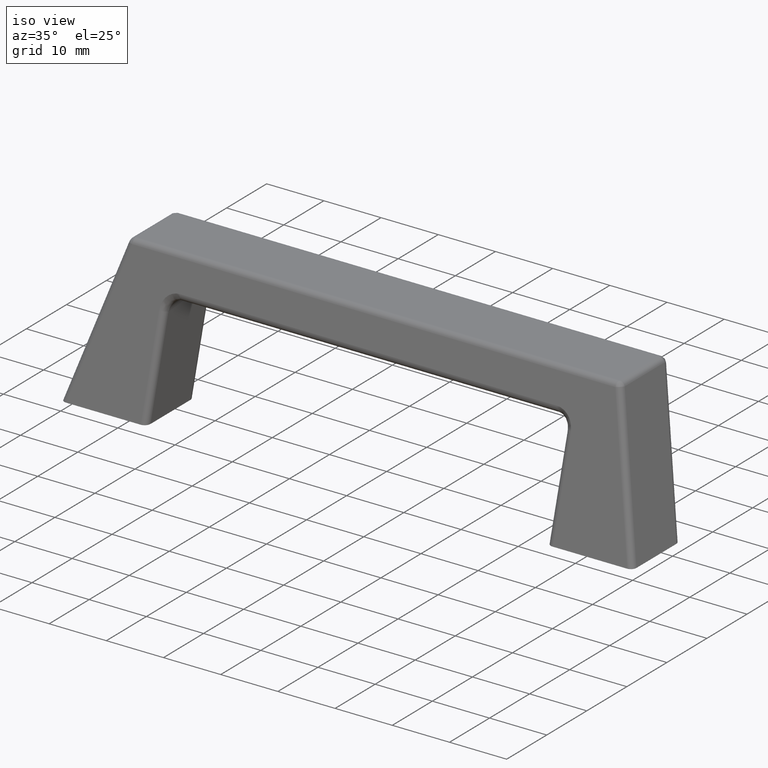
[diagram: clean part render]
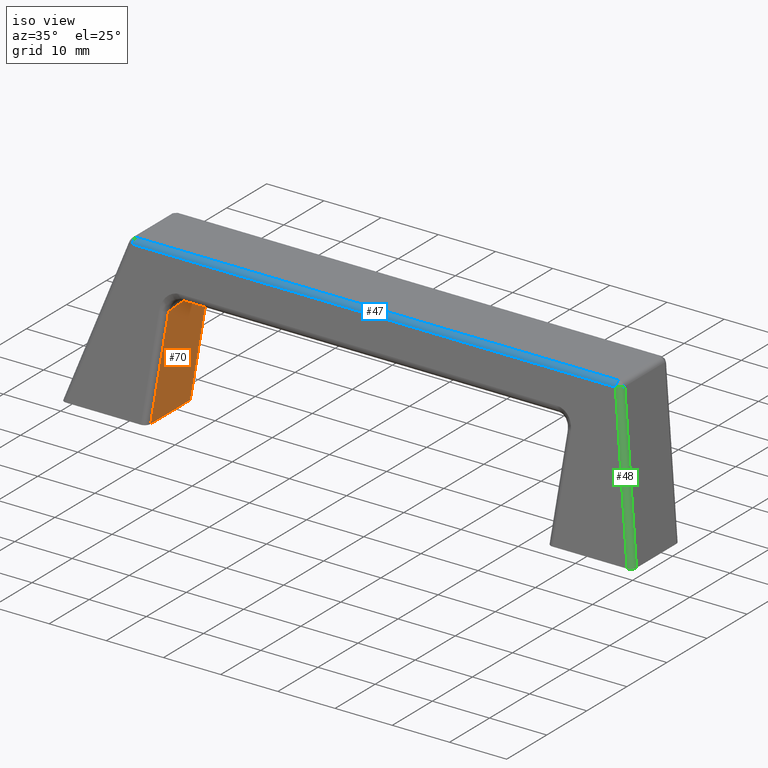
[diagram: same view with three faces highlighted in distinct colors, each labeled with its STEP entity id]
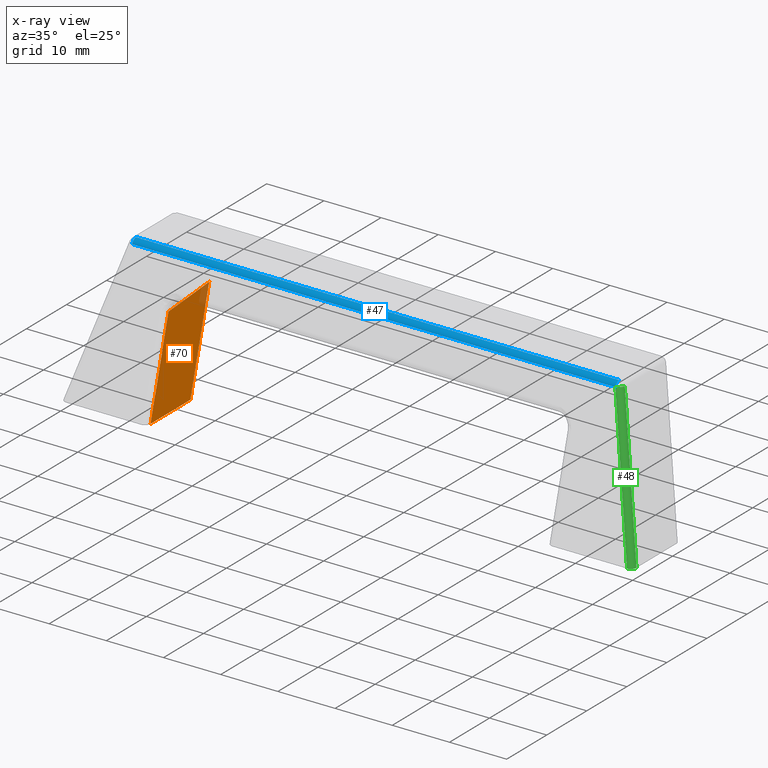
[diagram: x-ray of the same camera — body ghosted, the three highlighted faces saturated]
A machine part, iso view with three faces highlighted in distinct colors.
The next image is the same camera in x-ray (body ghosted, the three faces saturated) — at least one of them is partly hidden behind the body in this view.
Their STEP definitions:

[orange] entity #70 — the highlighted planar face has unit normal (-1, 0, 0).
#70=ADVANCED_FACE('',(#383),#382,.F.);
#382=PLANE('',#1540);
#383=FACE_OUTER_BOUND('',#1541,.T.);
#1537=CARTESIAN_POINT('',(-3.50000000000E+01,-4.25907587730E-01,-1.68600249860E+00));
#1538=DIRECTION('',(-1.00000000000E+00,0.00000000000E+00,0.00000000000E+00));
#1539=DIRECTION('',(0.00000000000E+00,0.00000000000E+00,1.00000000000E+00));
#1540=AXIS2_PLACEMENT_3D('',#1537,#1538,#1539);
#1541=EDGE_LOOP('',(#1721,#1722,#1723,#1724));
#1721=ORIENTED_EDGE('',*,*,#1837,.T.);
#1722=ORIENTED_EDGE('',*,*,#1788,.T.);
#1723=ORIENTED_EDGE('',*,*,#1853,.F.);
#1724=ORIENTED_EDGE('',*,*,#1821,.T.);
#1788=EDGE_CURVE('',#1953,#1972,#1980,.T.);
#1821=EDGE_CURVE('',#2181,#2195,#2202,.T.);
#1837=EDGE_CURVE('',#2195,#1953,#2306,.T.);
#1853=EDGE_CURVE('',#2181,#1972,#2408,.T.);
#1953=VERTEX_POINT('',#2532);
#1972=VERTEX_POINT('',#2545);
#1980=LINE('',#2552,#2553);
#2181=VERTEX_POINT('',#2679);
#2195=VERTEX_POINT('',#2687);
#2202=LINE('',#2692,#2693);
#2306=LINE('',#2755,#2756);
#2408=LINE('',#2815,#2816);
#2532=CARTESIAN_POINT('',(-3.50000000000E+01,5.52732537403E+00,1.60331000322E+01));
#2545=CARTESIAN_POINT('',(-3.50000000000E+01,1.03845373337E+00,0.00000000000E+00));
#2552=CARTESIAN_POINT('',(-3.50000000000E+01,5.52732537403E+00,1.60331000322E+01));
#2553=VECTOR('',#2554,1.66496325860E+01);
#2554=DIRECTION('',(0.00000000000E+00,-2.69607849751E-01,-9.62970200657E-01));
#2679=CARTESIAN_POINT('',(-3.50000000000E+01,1.09615441460E+01,0.00000000000E+00));
#2687=CARTESIAN_POINT('',(-3.50000000000E+01,1.56820669444E+01,1.68600249860E+01));
#2692=CARTESIAN_POINT('',(-3.50000000000E+01,1.09615441460E+01,0.00000000000E+00));
#2693=VECTOR('',#2694,1.75083916457E+01);
#2694=DIRECTION('',(0.00000000000E+00,2.69614873483E-01,9.62968234158E-01));
#2755=CARTESIAN_POINT('',(-3.50000000000E+01,1.56820669444E+01,1.68600249860E+01));
#2756=VECTOR('',#2757,1.01883551784E+01);
#2757=DIRECTION('',(0.00000000000E+00,-9.96700781687E-01,-8.11637344147E-02));
#2815=CARTESIAN_POINT('',(-3.50000000000E+01,1.09615441460E+01,0.00000000000E+00));
#2816=VECTOR('',#2817,9.92309041260E+00);
#2817=DIRECTION('',(0.00000000000E+00,-1.00000000000E+00,0.00000000000E+00));

[blue] entity #47 — the highlighted cylindrical surface (edge-blend (fillet) strip) has radius 1 mm, axis along (1, -0, 0).
#47=ADVANCED_FACE('',(#151),#150,.T.);
#150=CYLINDRICAL_SURFACE('',#979,1.00000000000E+00);
#151=FACE_OUTER_BOUND('',#980,.T.);
#976=CARTESIAN_POINT('',(4.44062159493E+01,7.75786040828E+00,2.40000000000E+01));
#977=DIRECTION('',(1.00000000000E+00,-5.89984913517E-15,6.20440166233E-15));
#978=DIRECTION('',(7.18522463750E-15,9.72369920398E-01,-2.33445363856E-01));
#979=AXIS2_PLACEMENT_3D('',#976,#977,#978);
#980=EDGE_LOOP('',(#1613,#1614,#1615,#1616));
#1613=ORIENTED_EDGE('',*,*,#1793,.T.);
#1614=ORIENTED_EDGE('',*,*,#1794,.F.);
#1615=ORIENTED_EDGE('',*,*,#1792,.F.);
#1616=ORIENTED_EDGE('',*,*,#1795,.F.);
#1792=EDGE_CURVE('',#2000,#1992,#2007,.T.);
#1793=EDGE_CURVE('',#2013,#2014,#2015,.T.);
#1794=EDGE_CURVE('',#1992,#2014,#2021,.T.);
#1795=EDGE_CURVE('',#2013,#2000,#2027,.T.);
#1992=VERTEX_POINT('',#2558);
#2000=VERTEX_POINT('',#2564);
#2007=CIRCLE('',#2572,1.00000000000E+00);
#2013=VERTEX_POINT('',#2573);
#2014=VERTEX_POINT('',#2574);
#2015=CIRCLE('',#2578,1.00000000000E+00);
#2021=LINE('',#2579,#2580);
#2027=LINE('',#2582,#2583);
#2558=CARTESIAN_POINT('',(4.22413396071E+01,6.79489020763E+00,2.42696078498E+01));
#2564=CARTESIAN_POINT('',(4.22413396071E+01,7.75786040828E+00,2.50000000000E+01));
#2569=CARTESIAN_POINT('',(4.22413396071E+01,7.75786040828E+00,2.40000000000E+01));
#2570=DIRECTION('',(1.00000000000E+00,5.87891468087E-15,2.84217094304E-14));
#2571=DIRECTION('',(2.84217094304E-14,7.10542735760E-15,-1.00000000000E+00));
#2572=AXIS2_PLACEMENT_3D('',#2569,#2570,#2571);
#2573=CARTESIAN_POINT('',(-4.22416395996E+01,7.75786040828E+00,2.50000000000E+01));
#2574=CARTESIAN_POINT('',(-4.22416395996E+01,6.79489020763E+00,2.42696078498E+01));
#2575=CARTESIAN_POINT('',(-4.22416395996E+01,7.75786040828E+00,2.40000000000E+01));
#2576=DIRECTION('',(1.00000000000E+00,2.93945734043E-15,-5.68434188608E-14));
#2577=DIRECTION('',(-5.68434188608E-14,-0.00000000000E+00,-1.00000000000E+00));
#2578=AXIS2_PLACEMENT_3D('',#2575,#2576,#2577);
#2579=CARTESIAN_POINT('',(4.22413396071E+01,6.79489020763E+00,2.42696078498E+01));
#2580=VECTOR('',#2581,8.44829792067E+01);
#2581=DIRECTION('',(-1.00000000000E+00,0.00000000000E+00,0.00000000000E+00));
#2582=CARTESIAN_POINT('',(-4.22416395996E+01,7.75786040828E+00,2.50000000000E+01));
#2583=VECTOR('',#2584,8.44829792067E+01);
#2584=DIRECTION('',(1.00000000000E+00,0.00000000000E+00,0.00000000000E+00));

[green] entity #48 — the highlighted cylindrical surface (edge-blend (fillet) strip) has radius 1 mm, axis along (0.2603, -0.2603, -0.9298).
#48=ADVANCED_FACE('',(#161),#160,.T.);
#160=CYLINDRICAL_SURFACE('',#984,1.00000000000E+00);
#161=FACE_OUTER_BOUND('',#985,.T.);
#981=CARTESIAN_POINT('',(4.92396782936E+01,7.60551495033E-01,-9.92595632751E-01));
#982=DIRECTION('',(2.60348643964E-01,-2.60310334864E-01,-9.29761858300E-01));
#983=DIRECTION('',(2.81207597764E-02,9.64606036180E-01,-2.62191567054E-01));
#984=AXIS2_PLACEMENT_3D('',#981,#982,#983);
#985=EDGE_LOOP('',(#1617,#1618,#1619,#1620));
#1617=ORIENTED_EDGE('',*,*,#1796,.F.);
#1618=ORIENTED_EDGE('',*,*,#1797,.F.);
#1619=ORIENTED_EDGE('',*,*,#1790,.F.);
#1620=ORIENTED_EDGE('',*,*,#1798,.F.);
#1790=EDGE_CURVE('',#1992,#1993,#1994,.T.);
#1796=EDGE_CURVE('',#2033,#2034,#2035,.T.);
#1797=EDGE_CURVE('',#1993,#2033,#2041,.T.);
#1798=EDGE_CURVE('',#2034,#1992,#2047,.T.);
#1992=VERTEX_POINT('',#2558);
#1993=VERTEX_POINT('',#2559);
#1994=CIRCLE('',#2563,1.00000000000E+00);
#2033=VERTEX_POINT('',#2585);
#2034=VERTEX_POINT('',#2586);
#2035=(BOUNDED_CURVE() B_SPLINE_CURVE(2,(#2587,#2588,#2589),.UNSPECIFIED.,.F.,.F.) B_SPLINE_CURVE_WITH_KNOTS((3,3),(0.00000000000E+00,1.00000000000E+00),.UNSPECIFIED.) CURVE() GEOMETRIC_REPRESENTATION_ITEM() RATIONAL_B_SPLINE_CURVE((1.00000000000E+00,7.32358625351E-01,1.00000000000E+00)) REPRESENTATION_ITEM('') );
#2041=LINE('',#2590,#2591);
#2047=LINE('',#2593,#2594);
#2558=CARTESIAN_POINT('',(4.22413396071E+01,6.79489020763E+00,2.42696078498E+01));
#2559=CARTESIAN_POINT('',(4.32042995060E+01,7.75786040828E+00,2.42696446425E+01));
#2560=CARTESIAN_POINT('',(4.22413396071E+01,7.75786040828E+00,2.40000000000E+01));
#2561=DIRECTION('',(-2.60348643964E-01,2.60310334864E-01,9.29761858300E-01));
#2562=DIRECTION('',(1.42137451658E-13,9.62970200657E-01,-2.69607849751E-01));
#2563=AXIS2_PLACEMENT_3D('',#2560,#2561,#2562);
#2585=CARTESIAN_POINT('',(5.00002000000E+01,9.62959899607E-01,0.00000000000E+00));
#2586=CARTESIAN_POINT('',(4.90372297986E+01,0.00000000000E+00,0.00000000000E+00));
#2587=CARTESIAN_POINT('',(5.00002000000E+01,9.62959899607E-01,0.00000000000E+00));
#2588=CARTESIAN_POINT('',(5.00002000000E+01,-6.89552600000E-14,0.00000000000E+00));
#2589=CARTESIAN_POINT('',(4.90372297986E+01,-3.38271100000E-14,0.00000000000E+00));
#2590=CARTESIAN_POINT('',(4.32042995060E+01,7.75786040828E+00,2.42696446425E+01));
#2591=VECTOR('',#2592,2.61030762080E+01);
#2592=DIRECTION('',(2.60348643964E-01,-2.60310334864E-01,-9.29761858300E-01));
#2593=CARTESIAN_POINT('',(4.90372297986E+01,0.00000000000E+00,0.00000000000E+00));
#2594=VECTOR('',#2595,2.61030366358E+01);
#2595=DIRECTION('',(-2.60348643964E-01,2.60310334864E-01,9.29761858300E-01));